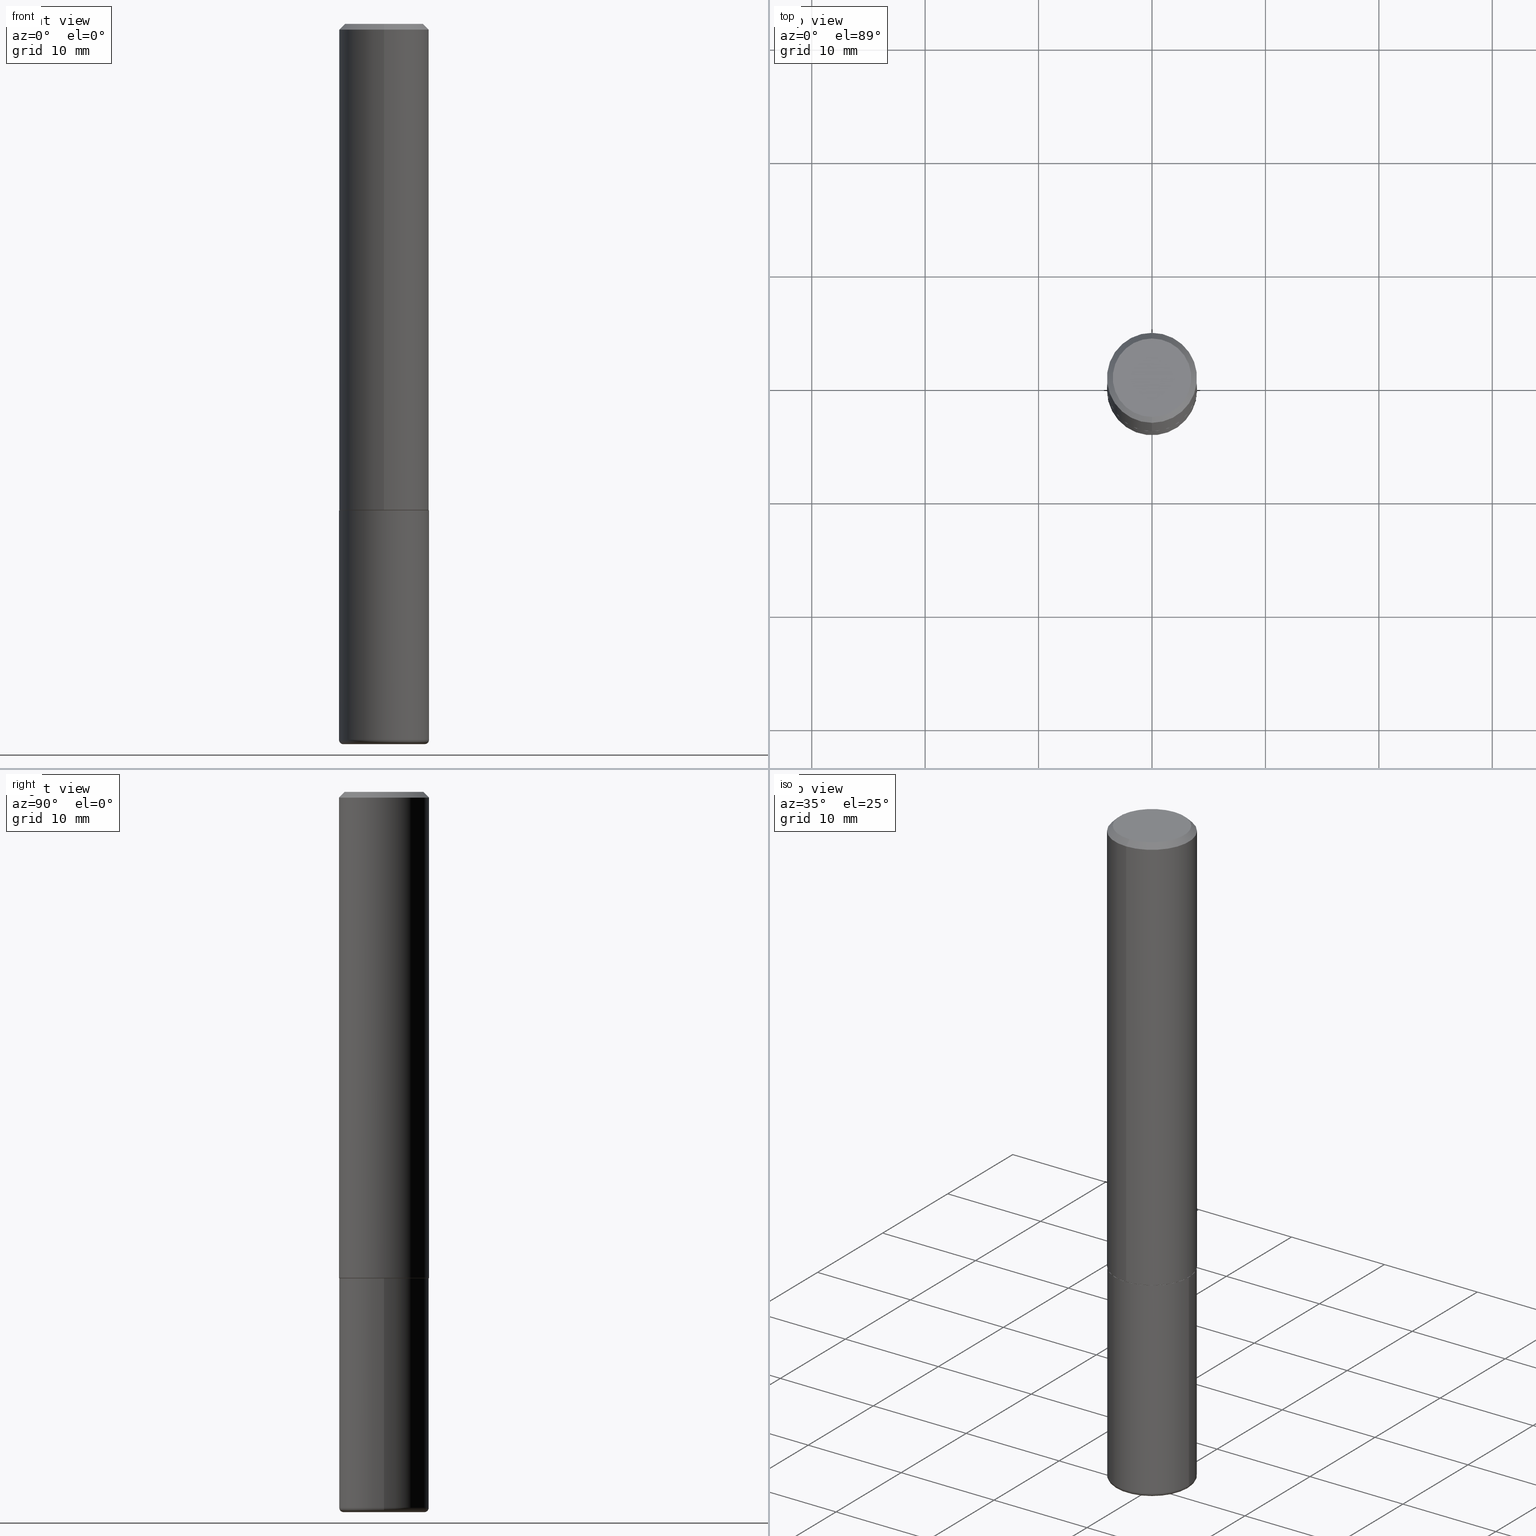
[diagram: canonical four-view strip — front | top / right | iso, engineering-drawing reading convention]
A machine part, canonical four-view strip (front | top / right | iso — engineering-drawing reading convention). The complete STEP part file that produces these views, byte-faithful:
ISO-10303-21;
HEADER;
FILE_DESCRIPTION (( 'STEP AP203' ),
    '1' );
FILE_NAME ('38232.STEP',
    '2024-03-02T19:02:57',
    ( '' ),
    ( '' ),
    'SwSTEP 2.0',
    'SolidWorks 2023',
    '' );
FILE_SCHEMA (( 'CONFIG_CONTROL_DESIGN' ));
ENDSEC;

DATA;
#1 = CARTESIAN_POINT ( 'NONE',  ( 0.000000000000000000, 0.000000000000000000, 0.000000000000000000 ) ) ;
#2 = CIRCLE ( 'NONE', #336, 0.1362500000000000933 ) ;
#3 = DIRECTION ( 'NONE',  ( -2.445468806185136597E-29, 3.491481338843145583E-15, 1.000000000000000000 ) ) ;
#4 = CYLINDRICAL_SURFACE ( 'NONE', #301, 0.1562500000000001110 ) ;
#5 = ORIENTED_EDGE ( 'NONE', *, *, #289, .T. ) ;
#6 = LINE ( 'NONE', #123, #50 ) ;
#7 = VERTEX_POINT ( 'NONE', #363 ) ;
#8 = CARTESIAN_POINT ( 'NONE',  ( 1.091087918388479568E-15, 0.1562499999999999445, -0.02000000000000057981 ) ) ;
#9 = CARTESIAN_POINT ( 'NONE',  ( 6.076989983370064174E-29, -8.676331127025216680E-15, -2.484999999999999876 ) ) ;
#10 = DIRECTION ( 'NONE',  ( 1.000000000000000000, -6.982962677686266711E-15, 4.876176775795936353E-29 ) ) ;
#11 = ORIENTED_EDGE ( 'NONE', *, *, #200, .T. ) ;
#12 = ADVANCED_FACE ( 'NONE', ( #186 ), #325, .T. ) ;
#13 = AXIS2_PLACEMENT_3D ( 'NONE', #96, #65, #216 ) ;
#14 = LOCAL_TIME ( 14, 2, 57.00000000000000000, #225 ) ;
#15 = EDGE_CURVE ( 'NONE', #256, #304, #79, .T. ) ;
#16 = EDGE_LOOP ( 'NONE', ( #72, #311, #158, #358 ) ) ;
#17 = EDGE_CURVE ( 'NONE', #7, #64, #292, .T. ) ;
#18 = ORIENTED_EDGE ( 'NONE', *, *, #132, .T. ) ;
#19 = CYLINDRICAL_SURFACE ( 'NONE', #317, 0.1562500000000000000 ) ;
#20 = ORIENTED_EDGE ( 'NONE', *, *, #326, .T. ) ;
#21 = APPROVAL ( #390, 'UNSPECIFIED' ) ;
#22 = AXIS2_PLACEMENT_3D ( 'NONE', #51, #150, #10 ) ;
#23 = AXIS2_PLACEMENT_3D ( 'NONE', #129, #264, #194 ) ;
#24 = CARTESIAN_POINT ( 'NONE',  ( 6.076989983370064174E-29, -8.676331127025216680E-15, -2.484999999999999876 ) ) ;
#25 = CARTESIAN_POINT ( 'NONE',  ( 4.890090461699924977E-31, -6.984175845663074797E-17, -0.02000000000000003511 ) ) ;
#26 = VERTEX_POINT ( 'NONE', #241 ) ;
#27 = DESIGN_CONTEXT ( 'detailed design', #401, 'design' ) ;
#28 = ORIENTED_EDGE ( 'NONE', *, *, #44, .T. ) ;
#29 = CARTESIAN_POINT ( 'NONE',  ( 4.890090461699924977E-31, -6.984175845663074797E-17, -0.02000000000000003511 ) ) ;
#30 = ADVANCED_FACE ( 'NONE', ( #339 ), #355, .T. ) ;
#31 = AXIS2_PLACEMENT_3D ( 'NONE', #160, #321, #267 ) ;
#32 = APPROVAL_STATUS ( 'not_yet_approved' ) ;
#33 = APPROVAL_ROLE ( '' ) ;
#34 = DIRECTION ( 'NONE',  ( -2.445468806185136597E-29, 3.491481338843145583E-15, 1.000000000000000000 ) ) ;
#35 = CARTESIAN_POINT ( 'NONE',  ( -1.003347832174086278E-15, -0.1362500000000000933, 4.246574766730091504E-16 ) ) ;
#36 = SHAPE_DEFINITION_REPRESENTATION ( #178, #378 ) ;
#37 = APPROVAL ( #199, 'UNSPECIFIED' ) ;
#38 = VECTOR ( 'NONE', #45, 39.37007874015748143 ) ;
#39 = SECURITY_CLASSIFICATION ( '', '', #173 ) ;
#40 = FACE_OUTER_BOUND ( 'NONE', #334, .T. ) ;
#41 = EDGE_LOOP ( 'NONE', ( #182, #20, #275, #273 ) ) ;
#42 = EDGE_CURVE ( 'NONE', #131, #202, #380, .T. ) ;
#43 = CARTESIAN_POINT ( 'NONE',  ( 1.110223024625178234E-15, 0.1562499999999943101, -1.687000000000000499 ) ) ;
#44 = EDGE_CURVE ( 'NONE', #202, #101, #106, .T. ) ;
#45 = DIRECTION ( 'NONE',  ( -2.445468806185136877E-29, 3.491481338843145188E-15, 1.000000000000000000 ) ) ;
#46 = APPROVAL_ROLE ( '' ) ;
#47 = ORIENTED_EDGE ( 'NONE', *, *, #289, .F. ) ;
#48 = CONICAL_SURFACE ( 'NONE', #126, 0.1562500000000000000, 0.7853981633974468357 ) ;
#49 = DATE_TIME_ROLE ( 'creation_date' ) ;
#50 = VECTOR ( 'NONE', #257, 39.37007874015748143 ) ;
#51 = CARTESIAN_POINT ( 'NONE',  ( 0.000000000000000000, 0.000000000000000000, 0.000000000000000000 ) ) ;
#52 = FACE_OUTER_BOUND ( 'NONE', #80, .T. ) ;
#53 = CARTESIAN_POINT ( 'NONE',  ( 4.127236349674729842E-29, -5.894644413739625756E-15, -1.688000000000000167 ) ) ;
#54 = EDGE_CURVE ( 'NONE', #26, #74, #262, .T. ) ;
#55 = LINE ( 'NONE', #397, #38 ) ;
#56 = CONICAL_SURFACE ( 'NONE', #404, 0.1552499999999999991, 0.7853981633975165577 ) ;
#57 = DIRECTION ( 'NONE',  ( -2.445468806185136597E-29, 3.491481338843145583E-15, 1.000000000000000000 ) ) ;
#58 = EDGE_LOOP ( 'NONE', ( #207, #234 ) ) ;
#59 = DIRECTION ( 'NONE',  ( 1.000000000000000000, -6.982962677686264344E-15, 4.883557194083111780E-29 ) ) ;
#60 = EDGE_CURVE ( 'NONE', #74, #26, #148, .T. ) ;
#61 = AXIS2_PLACEMENT_3D ( 'NONE', #373, #34, #151 ) ;
#62 = LINE ( 'NONE', #119, #370 ) ;
#63 = ADVANCED_FACE ( 'NONE', ( #236 ), #76, .F. ) ;
#64 = VERTEX_POINT ( 'NONE', #174 ) ;
#65 = DIRECTION ( 'NONE',  ( -2.445045230849958565E-29, 3.492087922831531704E-15, 1.000000000000000000 ) ) ;
#66 = CARTESIAN_POINT ( 'NONE',  ( 1.103117597267596553E-15, 0.1552499999999940872, -1.688000000000000611 ) ) ;
#67 = AXIS2_PLACEMENT_3D ( 'NONE', #268, #402, #332 ) ;
#68 = DATE_AND_TIME ( #316, #205 ) ;
#69 = DIRECTION ( 'NONE',  ( 5.024295867788404755E-15, 0.7071067811865981989, 0.7071067811864968355 ) ) ;
#70 = CIRCLE ( 'NONE', #167, 0.01499999999999983985 ) ;
#71 = FACE_OUTER_BOUND ( 'NONE', #303, .T. ) ;
#72 = ORIENTED_EDGE ( 'NONE', *, *, #54, .T. ) ;
#73 = CARTESIAN_POINT ( 'NONE',  ( 1.250383974604437494E-45, -1.785836401521438243E-31, -5.113950281278734949E-17 ) ) ;
#74 = VERTEX_POINT ( 'NONE', #385 ) ;
#75 = AXIS2_PLACEMENT_3D ( 'NONE', #117, #375, #86 ) ;
#76 = PLANE ( 'NONE',  #341 ) ;
#77 = ORIENTED_EDGE ( 'NONE', *, *, #276, .T. ) ;
#78 = DIRECTION ( 'NONE',  ( -2.445468806185136597E-29, 3.491481338843145583E-15, 1.000000000000000000 ) ) ;
#79 = CIRCLE ( 'NONE', #318, 0.1412499999999999867 ) ;
#80 = EDGE_LOOP ( 'NONE', ( #224, #18 ) ) ;
#81 = EDGE_CURVE ( 'NONE', #304, #7, #70, .T. ) ;
#82 = ORIENTED_EDGE ( 'NONE', *, *, #149, .F. ) ;
#83 = LINE ( 'NONE', #338, #211 ) ;
#84 = VERTEX_POINT ( 'NONE', #215 ) ;
#85 = COORDINATED_UNIVERSAL_TIME_OFFSET ( 5, 0, .BEHIND. ) ;
#86 = DIRECTION ( 'NONE',  ( -6.982962677686265922E-15, -1.000000000000000000, 3.492087922831532098E-15 ) ) ;
#87 = EDGE_LOOP ( 'NONE', ( #412, #416, #144, #409 ) ) ;
#88 = CLOSED_SHELL ( 'NONE', ( #253, #138, #170, #283, #350, #252, #63, #240 ) ) ;
#89 = VECTOR ( 'NONE', #112, 39.37007874015748143 ) ;
#90 = PRODUCT_RELATED_PRODUCT_CATEGORY ( 'detail', '', ( #255 ) ) ;
#91 = PERSON_AND_ORGANIZATION ( #110, #143 ) ;
#92 = APPROVAL_ROLE ( '' ) ;
#93 = DIRECTION ( 'NONE',  ( -2.445468806185136597E-29, 3.491481338843145583E-15, 1.000000000000000000 ) ) ;
#94 = AXIS2_PLACEMENT_3D ( 'NONE', #161, #307, #271 ) ;
#95 = COORDINATED_UNIVERSAL_TIME_OFFSET ( 5, 0, .BEHIND. ) ;
#96 = CARTESIAN_POINT ( 'NONE',  ( 4.890090461699924977E-31, -6.984175845663074797E-17, -0.02000000000000003511 ) ) ;
#97 = CARTESIAN_POINT ( 'NONE',  ( 6.113672015462840371E-29, -8.728703347107863365E-15, -2.499999999999999556 ) ) ;
#98 = EDGE_LOOP ( 'NONE', ( #82, #399, #239, #195 ) ) ;
#99 = CARTESIAN_POINT ( 'NONE',  ( 6.076989983370064174E-29, -8.676331127025216680E-15, -2.484999999999999876 ) ) ;
#100 = CARTESIAN_POINT ( 'NONE',  ( 0.000000000000000000, 0.000000000000000000, 0.000000000000000000 ) ) ;
#101 = VERTEX_POINT ( 'NONE', #320 ) ;
#102 = ORIENTED_EDGE ( 'NONE', *, *, #259, .T. ) ;
#103 = DIRECTION ( 'NONE',  ( -2.445045230849958565E-29, 3.492087922831531704E-15, 1.000000000000000000 ) ) ;
#104 = DIRECTION ( 'NONE',  ( -2.445045230849958565E-29, 3.492087922831531704E-15, 1.000000000000000000 ) ) ;
#105 = PRODUCT_DEFINITION ( 'UNKNOWN', '', #406, #27 ) ;
#106 = CIRCLE ( 'NONE', #13, 0.1562500000000000000 ) ;
#107 = FACE_OUTER_BOUND ( 'NONE', #98, .T. ) ;
#108 = CC_DESIGN_APPROVAL ( #37, ( #105 ) ) ;
#109 = DIRECTION ( 'NONE',  ( -2.445045230849958565E-29, 3.492087922831531704E-15, 1.000000000000000000 ) ) ;
#110 = PERSON ( 'UNSPECIFIED', 'UNSPECIFIED', 'UNSPECIFIED', ('UNSPECIFIED'), ('UNSPECIFIED'), ('UNSPECIFIED') ) ;
#111 = CARTESIAN_POINT ( 'NONE',  ( 6.113672015462840371E-29, -8.728703347107863365E-15, -2.499999999999999556 ) ) ;
#112 = DIRECTION ( 'NONE',  ( -2.445468806185136877E-29, 3.491481338843145188E-15, 1.000000000000000000 ) ) ;
#113 = ORIENTED_EDGE ( 'NONE', *, *, #17, .T. ) ;
#114 = AXIS2_PLACEMENT_3D ( 'NONE', #1, #121, #298 ) ;
#115 = DIRECTION ( 'NONE',  ( 1.000000000000000000, -6.982962677686270655E-15, 0.000000000000000000 ) ) ;
#116 = ORIENTED_EDGE ( 'NONE', *, *, #276, .F. ) ;
#117 = CARTESIAN_POINT ( 'NONE',  ( 0.000000000000000000, 0.000000000000000000, 0.000000000000000000 ) ) ;
#118 = ORIENTED_EDGE ( 'NONE', *, *, #206, .F. ) ;
#119 = CARTESIAN_POINT ( 'NONE',  ( -1.091087918388479765E-15, -0.1562500000000001110, 5.456387379424272725E-16 ) ) ;
#120 = AXIS2_PLACEMENT_3D ( 'NONE', #176, #290, #389 ) ;
#121 = DIRECTION ( 'NONE',  ( 0.000000000000000000, 0.000000000000000000, 1.000000000000000000 ) ) ;
#122 = CALENDAR_DATE ( 2024, 2, 3 ) ;
#123 = CARTESIAN_POINT ( 'NONE',  ( -1.084104955710751547E-15, -0.1552500000000059110, -1.687999999999999501 ) ) ;
#124 = EDGE_LOOP ( 'NONE', ( #77, #11 ) ) ;
#125 = DIRECTION ( 'NONE',  ( 1.000000000000000000, -6.982962677686213068E-15, 0.000000000000000000 ) ) ;
#126 = AXIS2_PLACEMENT_3D ( 'NONE', #29, #203, #169 ) ;
#127 = DATE_AND_TIME ( #219, #347 ) ;
#128 = CIRCLE ( 'NONE', #61, 0.1562499999999999722 ) ;
#129 = CARTESIAN_POINT ( 'NONE',  ( 4.127951344840510809E-29, -5.893620499967230340E-15, -1.688000000000000167 ) ) ;
#130 = ORIENTED_EDGE ( 'NONE', *, *, #379, .T. ) ;
#131 = VERTEX_POINT ( 'NONE', #43 ) ;
#132 = EDGE_CURVE ( 'NONE', #391, #374, #2, .T. ) ;
#133 = MANIFOLD_SOLID_BREP ( 'Body-Move/Copy2[2]', #88 ) ;
#134 = ORIENTED_EDGE ( 'NONE', *, *, #417, .F. ) ;
#135 = UNCERTAINTY_MEASURE_WITH_UNIT (LENGTH_MEASURE( 1.000000000000000082E-05 ), #294, 'distance_accuracy_value', 'NONE');
#136 = APPROVAL_PERSON_ORGANIZATION ( #248, #192, #33 ) ;
#137 = CARTESIAN_POINT ( 'NONE',  ( 1.250383974604437494E-45, -1.785836401521438243E-31, -5.113950281278734949E-17 ) ) ;
#138 = ADVANCED_FACE ( 'NONE', ( #293 ), #4, .T. ) ;
#139 = LINE ( 'NONE', #411, #89 ) ;
#140 = ORIENTED_EDGE ( 'NONE', *, *, #189, .F. ) ;
#141 = DIRECTION ( 'NONE',  ( -6.982962677686265922E-15, -1.000000000000000000, 3.496765431890251792E-15 ) ) ;
#142 = DIRECTION ( 'NONE',  ( -6.982962677686265133E-15, -1.000000000000000000, 3.496765431890256920E-15 ) ) ;
#143 = ORGANIZATION ( 'UNSPECIFIED', 'UNSPECIFIED', '' ) ;
#144 = ORIENTED_EDGE ( 'NONE', *, *, #159, .F. ) ;
#145 = CARTESIAN_POINT ( 'NONE',  ( -0.1412499999999999867, -7.645584917623391438E-15, -2.499999999999999556 ) ) ;
#146 = DIRECTION ( 'NONE',  ( 2.445045230849958565E-29, -3.492087922831531704E-15, -1.000000000000000000 ) ) ;
#147 = DIRECTION ( 'NONE',  ( -6.982962677686265922E-15, -1.000000000000000000, 3.492087922831532098E-15 ) ) ;
#148 = CIRCLE ( 'NONE', #364, 0.1552499999999999991 ) ;
#149 = EDGE_CURVE ( 'NONE', #74, #131, #354, .T. ) ;
#150 = DIRECTION ( 'NONE',  ( -2.445468806185136597E-29, 3.491481338843145583E-15, 1.000000000000000000 ) ) ;
#151 = DIRECTION ( 'NONE',  ( 1.000000000000000000, -6.982962677686270655E-15, 0.000000000000000000 ) ) ;
#152 = VECTOR ( 'NONE', #69, 39.37007874015748143 ) ;
#153 = AXIS2_PLACEMENT_3D ( 'NONE', #286, #104, #141 ) ;
#154 = FACE_OUTER_BOUND ( 'NONE', #124, .T. ) ;
#155 = DIRECTION ( 'NONE',  ( -2.445045230849958565E-29, 3.492087922831531704E-15, 1.000000000000000000 ) ) ;
#156 = CARTESIAN_POINT ( 'NONE',  ( -1.091087918388439336E-15, -0.1562500000000061062, -1.686999999999999611 ) ) ;
#157 = CIRCLE ( 'NONE', #210, 0.1562500000000000000 ) ;
#158 = ORIENTED_EDGE ( 'NONE', *, *, #407, .F. ) ;
#159 = EDGE_CURVE ( 'NONE', #101, #202, #193, .T. ) ;
#160 = CARTESIAN_POINT ( 'NONE',  ( 9.514286648347543521E-16, 0.1362500000000000933, -5.013667308921901438E-16 ) ) ;
#161 = CARTESIAN_POINT ( 'NONE',  ( 4.127236349674729842E-29, -5.894644413739625756E-15, -1.688000000000000167 ) ) ;
#162 = AXIS2_PLACEMENT_3D ( 'NONE', #24, #57, #115 ) ;
#163 = DIRECTION ( 'NONE',  ( -2.445045230849957724E-29, 3.492087922831532098E-15, 1.000000000000000000 ) ) ;
#164 = CARTESIAN_POINT ( 'NONE',  ( -0.1412499999999999867, -7.672689512764074473E-15, -2.484999999999999876 ) ) ;
#165 = PERSON_AND_ORGANIZATION_ROLE ( 'design_owner' ) ;
#166 = DATE_AND_TIME ( #254, #14 ) ;
#167 = AXIS2_PLACEMENT_3D ( 'NONE', #164, #197, #279 ) ;
#168 = AXIS2_PLACEMENT_3D ( 'NONE', #9, #3, #183 ) ;
#169 = DIRECTION ( 'NONE',  ( 6.982962677686265133E-15, 1.000000000000000000, -3.496765431890256920E-15 ) ) ;
#170 = ADVANCED_FACE ( 'NONE', ( #287 ), #48, .T. ) ;
#171 = CIRCLE ( 'NONE', #346, 0.1412499999999999867 ) ;
#172 = TOROIDAL_SURFACE ( 'NONE', #168, 0.1412499999999999867, 0.01499999999999983985 ) ;
#173 = SECURITY_CLASSIFICATION_LEVEL ( 'unclassified' ) ;
#174 = CARTESIAN_POINT ( 'NONE',  ( 0.1562499999999999167, -9.767419045413696643E-15, -2.484999999999999876 ) ) ;
#175 = COORDINATED_UNIVERSAL_TIME_OFFSET ( 5, 0, .BEHIND. ) ;
#176 = CARTESIAN_POINT ( 'NONE',  ( 4.127951344840510809E-29, -5.893620499967230340E-15, -1.688000000000000167 ) ) ;
#177 = DATE_AND_TIME ( #208, #270 ) ;
#178 = PRODUCT_DEFINITION_SHAPE ( 'NONE', 'NONE',  #105 ) ;
#179 = AXIS2_PLACEMENT_3D ( 'NONE', #393, #191, #142 ) ;
#180 = CC_DESIGN_APPROVAL ( #192, ( #39 ) ) ;
#181 = CARTESIAN_POINT ( 'NONE',  ( 1.286637735382378644E-28, 9.415550375444000163E-16, -2.500000000000000000 ) ) ;
#182 = ORIENTED_EDGE ( 'NONE', *, *, #132, .F. ) ;
#183 = DIRECTION ( 'NONE',  ( 1.000000000000000000, -6.982962677686264344E-15, 4.883557194083111780E-29 ) ) ;
#184 = DIRECTION ( 'NONE',  ( -6.982962677686265922E-15, -1.000000000000000000, 3.492087922831531704E-15 ) ) ;
#185 = CC_DESIGN_APPROVAL ( #21, ( #406 ) ) ;
#186 = FACE_OUTER_BOUND ( 'NONE', #395, .T. ) ;
#187 = CC_DESIGN_DATE_AND_TIME_ASSIGNMENT ( #177, #288, ( #39 ) ) ;
#188 = EDGE_LOOP ( 'NONE', ( #403, #140 ) ) ;
#189 = EDGE_CURVE ( 'NONE', #304, #256, #171, .T. ) ;
#190 = CARTESIAN_POINT ( 'NONE',  ( 0.1562500000000000000, -6.984708418355709513E-15, -1.688000000000000167 ) ) ;
#191 = DIRECTION ( 'NONE',  ( -2.445045230849958565E-29, 3.492087922831531704E-15, 1.000000000000000000 ) ) ;
#192 = APPROVAL ( #32, 'UNSPECIFIED' ) ;
#193 = CIRCLE ( 'NONE', #179, 0.1562500000000000000 ) ;
#194 = DIRECTION ( 'NONE',  ( 1.000000000000000000, -6.982962677686269077E-15, 0.000000000000000000 ) ) ;
#195 = ORIENTED_EDGE ( 'NONE', *, *, #379, .F. ) ;
#196 = AXIS2_PLACEMENT_3D ( 'NONE', #99, #221, #59 ) ;
#197 = DIRECTION ( 'NONE',  ( 7.105427357601001859E-15, 1.000000000000000000, -3.491481338843145583E-15 ) ) ;
#198 = DIRECTION ( 'NONE',  ( -2.445468806185136597E-29, 3.491481338843145583E-15, 1.000000000000000000 ) ) ;
#199 = APPROVAL_STATUS ( 'not_yet_approved' ) ;
#200 = EDGE_CURVE ( 'NONE', #84, #258, #157, .T. ) ;
#201 = CC_DESIGN_PERSON_AND_ORGANIZATION_ASSIGNMENT ( #362, #322, ( #105 ) ) ;
#202 = VERTEX_POINT ( 'NONE', #8 ) ;
#203 = DIRECTION ( 'NONE',  ( 2.445045230849958565E-29, -3.492087922831531704E-15, -1.000000000000000000 ) ) ;
#204 = MECHANICAL_CONTEXT ( 'NONE', #281, 'mechanical' ) ;
#205 = LOCAL_TIME ( 14, 2, 57.00000000000000000, #85 ) ;
#207 = ORIENTED_EDGE ( 'NONE', *, *, #54, .F. ) ;
#206 = EDGE_CURVE ( 'NONE', #256, #64, #335, .T. ) ;
#208 = CALENDAR_DATE ( 2024, 2, 3 ) ;
#209 = PLANE ( 'NONE',  #120 ) ;
#210 = AXIS2_PLACEMENT_3D ( 'NONE', #327, #78, #331 ) ;
#211 = VECTOR ( 'NONE', #226, 39.37007874015748143 ) ;
#212 = LENGTH_MEASURE_WITH_UNIT ( LENGTH_MEASURE( 0.02539999999999999897 ), #400 );
#213 = CARTESIAN_POINT ( 'NONE',  ( 1.110223024625157132E-15, 0.1562500000000001110, -5.456387379424272725E-16 ) ) ;
#214 = PERSON_AND_ORGANIZATION_ROLE ( 'design_supplier' ) ;
#215 = CARTESIAN_POINT ( 'NONE',  ( -0.1562500000000000000, -6.174752788871067364E-15, -1.688000000000000167 ) ) ;
#216 = DIRECTION ( 'NONE',  ( -6.982962677686265133E-15, -1.000000000000000000, 3.496765431890256920E-15 ) ) ;
#217 = CARTESIAN_POINT ( 'NONE',  ( -1.071952812151801215E-15, -0.1562500000000000833, -0.01999999999999948694 ) ) ;
#218 = CIRCLE ( 'NONE', #23, 0.1562500000000000000 ) ;
#219 = CALENDAR_DATE ( 2024, 2, 3 ) ;
#220 = EDGE_LOOP ( 'NONE', ( #229, #243, #242, #118 ) ) ;
#221 = DIRECTION ( 'NONE',  ( -2.445468806185136597E-29, 3.491481338843145583E-15, 1.000000000000000000 ) ) ;
#222 = ORIENTED_EDGE ( 'NONE', *, *, #200, .F. ) ;
#223 = CC_DESIGN_PERSON_AND_ORGANIZATION_ASSIGNMENT ( #315, #214, ( #406 ) ) ;
#224 = ORIENTED_EDGE ( 'NONE', *, *, #417, .T. ) ;
#225 = COORDINATED_UNIVERSAL_TIME_OFFSET ( 5, 0, .BEHIND. ) ;
#226 = DIRECTION ( 'NONE',  ( 4.937700262164540154E-15, 0.7071067811865440200, -0.7071067811865510144 ) ) ;
#227 = CLOSED_SHELL ( 'NONE', ( #414, #343, #345, #12, #328, #30 ) ) ;
#228 = CONICAL_SURFACE ( 'NONE', #342, 0.1562500000000000000, 0.7853981633974468357 ) ;
#229 = ORIENTED_EDGE ( 'NONE', *, *, #15, .T. ) ;
#230 = DIRECTION ( 'NONE',  ( -2.445045230849958565E-29, 3.492087922831531704E-15, 1.000000000000000000 ) ) ;
#231 = PLANE ( 'NONE',  #31 ) ;
#232 = ORIENTED_EDGE ( 'NONE', *, *, #189, .T. ) ;
#233 = CARTESIAN_POINT ( 'NONE',  ( 0.1412499999999999867, -9.662674605248401695E-15, -2.484999999999999876 ) ) ;
#234 = ORIENTED_EDGE ( 'NONE', *, *, #60, .F. ) ;
#235 = PERSON_AND_ORGANIZATION ( #110, #143 ) ;
#236 = FACE_OUTER_BOUND ( 'NONE', #58, .T. ) ;
#237 = CIRCLE ( 'NONE', #413, 0.1562500000000002220 ) ;
#238 = DIRECTION ( 'NONE',  ( -2.445045230849958565E-29, 3.492087922831532098E-15, 1.000000000000000000 ) ) ;
#239 = ORIENTED_EDGE ( 'NONE', *, *, #308, .T. ) ;
#240 = ADVANCED_FACE ( 'NONE', ( #52 ), #231, .F. ) ;
#241 = CARTESIAN_POINT ( 'NONE',  ( -1.084104955710751547E-15, -0.1552500000000059110, -1.687999999999999501 ) ) ;
#242 = ORIENTED_EDGE ( 'NONE', *, *, #300, .F. ) ;
#243 = ORIENTED_EDGE ( 'NONE', *, *, #81, .T. ) ;
#244 = PERSON_AND_ORGANIZATION_ROLE ( 'classification_officer' ) ;
#245 = VECTOR ( 'NONE', #388, 39.37007874015748143 ) ;
#246 = CC_DESIGN_SECURITY_CLASSIFICATION ( #39, ( #406 ) ) ;
#247 = DIRECTION ( 'NONE',  ( 1.000000000000000000, -6.982962677686270655E-15, 0.000000000000000000 ) ) ;
#248 = PERSON_AND_ORGANIZATION ( #110, #143 ) ;
#249 = TOROIDAL_SURFACE ( 'NONE', #196, 0.1412499999999999867, 0.01499999999999983985 ) ;
#250 = DIRECTION ( 'NONE',  ( -6.982962677686265922E-15, -1.000000000000000000, 3.492087922831531704E-15 ) ) ;
#251 = DIRECTION ( 'NONE',  ( -6.982962677686265922E-15, -1.000000000000000000, 3.496765431890251792E-15 ) ) ;
#252 = ADVANCED_FACE ( 'NONE', ( #107 ), #277, .T. ) ;
#253 = ADVANCED_FACE ( 'NONE', ( #297 ), #56, .T. ) ;
#254 = CALENDAR_DATE ( 2024, 2, 3 ) ;
#255 = PRODUCT ( '38232', '38232', '', ( #204 ) ) ;
#256 = VERTEX_POINT ( 'NONE', #366 ) ;
#257 = DIRECTION ( 'NONE',  ( -4.937700262164884886E-15, -0.7071067811865933139, 0.7071067811865017205 ) ) ;
#258 = VERTEX_POINT ( 'NONE', #190 ) ;
#259 = EDGE_CURVE ( 'NONE', #7, #84, #55, .T. ) ;
#260 = DIRECTION ( 'NONE',  ( -6.982962677686265922E-15, -1.000000000000000000, 3.519288880726909138E-15 ) ) ;
#261 = FACE_OUTER_BOUND ( 'NONE', #368, .T. ) ;
#262 = CIRCLE ( 'NONE', #67, 0.1552499999999999991 ) ;
#263 = VERTEX_POINT ( 'NONE', #156 ) ;
#264 = DIRECTION ( 'NONE',  ( -2.445468806185136597E-29, 3.491481338843145583E-15, 1.000000000000000000 ) ) ;
#265 = CC_DESIGN_PERSON_AND_ORGANIZATION_ASSIGNMENT ( #91, #244, ( #39 ) ) ;
#266 = DIRECTION ( 'NONE',  ( -2.445045230849958565E-29, 3.492087922831531704E-15, 1.000000000000000000 ) ) ;
#267 = DIRECTION ( 'NONE',  ( 6.982962677686265922E-15, 1.000000000000000000, -3.492087922831532098E-15 ) ) ;
#268 = CARTESIAN_POINT ( 'NONE',  ( 4.127236349674729842E-29, -5.894644413739625756E-15, -1.688000000000000167 ) ) ;
#269 = CARTESIAN_POINT ( 'NONE',  ( 4.124791304443880664E-29, -5.891152325816794336E-15, -1.687000000000000055 ) ) ;
#270 = LOCAL_TIME ( 14, 2, 57.00000000000000000, #382 ) ;
#271 = DIRECTION ( 'NONE',  ( -6.982962677686265922E-15, -1.000000000000000000, 3.519288880726909138E-15 ) ) ;
#272 = DIRECTION ( 'NONE',  ( -6.982962677686265922E-15, -1.000000000000000000, 3.519288880726909138E-15 ) ) ;
#273 = ORIENTED_EDGE ( 'NONE', *, *, #381, .F. ) ;
#274 = APPLICATION_PROTOCOL_DEFINITION ( 'international standard', 'config_control_design', 1994, #401 ) ;
#275 = ORIENTED_EDGE ( 'NONE', *, *, #159, .T. ) ;
#276 = EDGE_CURVE ( 'NONE', #258, #84, #218, .T. ) ;
#277 = CONICAL_SURFACE ( 'NONE', #94, 0.1552499999999999991, 0.7853981633975165577 ) ;
#278 = AXIS2_PLACEMENT_3D ( 'NONE', #137, #360, #184 ) ;
#279 = DIRECTION ( 'NONE',  ( -1.000000000000000000, 7.105427357601001859E-15, 0.000000000000000000 ) ) ;
#280 = MANIFOLD_SOLID_BREP ( 'Body-Move/Copy2[1]', #227 ) ;
#281 = APPLICATION_CONTEXT ( 'configuration controlled 3d designs of mechanical parts and assemblies' ) ;
#282 = ORIENTED_EDGE ( 'NONE', *, *, #42, .F. ) ;
#283 = ADVANCED_FACE ( 'NONE', ( #310 ), #228, .T. ) ;
#284 = DIRECTION ( 'NONE',  ( 6.982962677686265133E-15, 1.000000000000000000, -3.496765431890256920E-15 ) ) ;
#285 = ORIENTED_EDGE ( 'NONE', *, *, #81, .F. ) ;
#286 = CARTESIAN_POINT ( 'NONE',  ( 4.124791304443880664E-29, -5.891152325816794336E-15, -1.687000000000000055 ) ) ;
#287 = FACE_OUTER_BOUND ( 'NONE', #41, .T. ) ;
#288 = DATE_TIME_ROLE ( 'classification_date' ) ;
#289 = EDGE_CURVE ( 'NONE', #64, #258, #139, .T. ) ;
#290 = DIRECTION ( 'NONE',  ( 2.438088387897960049E-29, -3.491481338843145188E-15, -1.000000000000000000 ) ) ;
#291 = CC_DESIGN_PERSON_AND_ORGANIZATION_ASSIGNMENT ( #235, #352, ( #406 ) ) ;
#292 = CIRCLE ( 'NONE', #162, 0.1562499999999999722 ) ;
#293 = FACE_OUTER_BOUND ( 'NONE', #87, .T. ) ;
#294 =( CONVERSION_BASED_UNIT ( 'INCH', #212 ) LENGTH_UNIT ( ) NAMED_UNIT ( #348 ) );
#295 = DIRECTION ( 'NONE',  ( -6.982962677686265922E-15, -1.000000000000000000, 3.492087922831532098E-15 ) ) ;
#296 = EDGE_CURVE ( 'NONE', #263, #101, #62, .T. ) ;
#297 = FACE_OUTER_BOUND ( 'NONE', #16, .T. ) ;
#298 = DIRECTION ( 'NONE',  ( 1.000000000000000000, 0.000000000000000000, 0.000000000000000000 ) ) ;
#299 = ORIENTED_EDGE ( 'NONE', *, *, #381, .T. ) ;
#300 = EDGE_CURVE ( 'NONE', #64, #7, #128, .T. ) ;
#301 = AXIS2_PLACEMENT_3D ( 'NONE', #100, #155, #295 ) ;
#302 = CIRCLE ( 'NONE', #278, 0.1362500000000000933 ) ;
#303 = EDGE_LOOP ( 'NONE', ( #285, #232, #376, #418 ) ) ;
#304 = VERTEX_POINT ( 'NONE', #145 ) ;
#305 = DIRECTION ( 'NONE',  ( -2.445468806185136597E-29, 3.491481338843145583E-15, 1.000000000000000000 ) ) ;
#306 = ORIENTED_EDGE ( 'NONE', *, *, #326, .F. ) ;
#307 = DIRECTION ( 'NONE',  ( -2.445045230849958565E-29, 3.492087922831531704E-15, 1.000000000000000000 ) ) ;
#308 = EDGE_CURVE ( 'NONE', #26, #263, #6, .T. ) ;
#309 = APPROVAL_DATE_TIME ( #68, #21 ) ;
#310 = FACE_OUTER_BOUND ( 'NONE', #344, .T. ) ;
#311 = ORIENTED_EDGE ( 'NONE', *, *, #149, .T. ) ;
#312 = AXIS2_PLACEMENT_3D ( 'NONE', #181, #410, #340 ) ;
#313 = DIRECTION ( 'NONE',  ( 1.000000000000000000, -6.982962677686270655E-15, 0.000000000000000000 ) ) ;
#314 = CC_DESIGN_PERSON_AND_ORGANIZATION_ASSIGNMENT ( #367, #165, ( #255 ) ) ;
#315 = PERSON_AND_ORGANIZATION ( #110, #143 ) ;
#316 = CALENDAR_DATE ( 2024, 2, 3 ) ;
#317 = AXIS2_PLACEMENT_3D ( 'NONE', #329, #305, #398 ) ;
#318 = AXIS2_PLACEMENT_3D ( 'NONE', #97, #93, #247 ) ;
#319 =( GEOMETRIC_REPRESENTATION_CONTEXT ( 3 ) GLOBAL_UNCERTAINTY_ASSIGNED_CONTEXT ( ( #135 ) ) GLOBAL_UNIT_ASSIGNED_CONTEXT ( ( #294, #351, #324 ) ) REPRESENTATION_CONTEXT ( 'NONE', 'WORKASPACE' ) );
#320 = CARTESIAN_POINT ( 'NONE',  ( -1.071952812151801215E-15, -0.1562500000000000833, -0.01999999999999948694 ) ) ;
#321 = DIRECTION ( 'NONE',  ( 2.445045230849957724E-29, -3.492087922831532098E-15, -1.000000000000000000 ) ) ;
#322 = PERSON_AND_ORGANIZATION_ROLE ( 'creator' ) ;
#323 = VECTOR ( 'NONE', #357, 39.37007874015748143 ) ;
#324 =( NAMED_UNIT ( * ) SI_UNIT ( $, .STERADIAN. ) SOLID_ANGLE_UNIT ( ) );
#325 = CYLINDRICAL_SURFACE ( 'NONE', #22, 0.1562500000000000000 ) ;
#326 = EDGE_CURVE ( 'NONE', #391, #101, #394, .T. ) ;
#327 = CARTESIAN_POINT ( 'NONE',  ( 4.127951344840510809E-29, -5.893620499967230340E-15, -1.688000000000000167 ) ) ;
#328 = ADVANCED_FACE ( 'NONE', ( #71 ), #172, .T. ) ;
#329 = CARTESIAN_POINT ( 'NONE',  ( 0.000000000000000000, 0.000000000000000000, 0.000000000000000000 ) ) ;
#330 = APPLICATION_PROTOCOL_DEFINITION ( 'international standard', 'config_control_design', 1994, #281 ) ;
#331 = DIRECTION ( 'NONE',  ( 1.000000000000000000, -6.982962677686269077E-15, 0.000000000000000000 ) ) ;
#332 = DIRECTION ( 'NONE',  ( -6.982962677686265922E-15, -1.000000000000000000, 3.519288880726909138E-15 ) ) ;
#333 = CARTESIAN_POINT ( 'NONE',  ( 1.021258291611616861E-15, 0.1362500000000000933, -5.269364822985837754E-16 ) ) ;
#334 = EDGE_LOOP ( 'NONE', ( #383, #102, #116, #47 ) ) ;
#335 = CIRCLE ( 'NONE', #396, 0.01499999999999983985 ) ;
#336 = AXIS2_PLACEMENT_3D ( 'NONE', #73, #266, #250 ) ;
#337 = APPROVAL_PERSON_ORGANIZATION ( #353, #21, #92 ) ;
#338 = CARTESIAN_POINT ( 'NONE',  ( 1.091087918388479568E-15, 0.1562499999999999445, -0.02000000000000057981 ) ) ;
#339 = FACE_OUTER_BOUND ( 'NONE', #188, .T. ) ;
#340 = DIRECTION ( 'NONE',  ( -1.000000000000000000, 6.982962677686265922E-15, -4.876176775795935793E-29 ) ) ;
#341 = AXIS2_PLACEMENT_3D ( 'NONE', #53, #163, #147 ) ;
#342 = AXIS2_PLACEMENT_3D ( 'NONE', #25, #146, #284 ) ;
#343 = ADVANCED_FACE ( 'NONE', ( #387 ), #249, .T. ) ;
#344 = EDGE_LOOP ( 'NONE', ( #306, #134, #299, #28 ) ) ;
#345 = ADVANCED_FACE ( 'NONE', ( #154 ), #209, .F. ) ;
#346 = AXIS2_PLACEMENT_3D ( 'NONE', #111, #198, #313 ) ;
#347 = LOCAL_TIME ( 14, 2, 57.00000000000000000, #175 ) ;
#348 = DIMENSIONAL_EXPONENTS ( 1.000000000000000000, 0.000000000000000000, 0.000000000000000000, 0.000000000000000000, 0.000000000000000000, 0.000000000000000000, 0.000000000000000000 ) ;
#349 = APPROVAL_DATE_TIME ( #386, #192 ) ;
#350 = ADVANCED_FACE ( 'NONE', ( #261 ), #371, .T. ) ;
#351 =( NAMED_UNIT ( * ) PLANE_ANGLE_UNIT ( ) SI_UNIT ( $, .RADIAN. ) );
#352 = PERSON_AND_ORGANIZATION_ROLE ( 'creator' ) ;
#353 = PERSON_AND_ORGANIZATION ( #110, #143 ) ;
#354 = LINE ( 'NONE', #66, #152 ) ;
#355 = PLANE ( 'NONE',  #312 ) ;
#356 = CC_DESIGN_DATE_AND_TIME_ASSIGNMENT ( #127, #49, ( #105 ) ) ;
#357 = DIRECTION ( 'NONE',  ( -4.851104656540956386E-15, -0.7071067811865489050, -0.7071067811865461294 ) ) ;
#358 = ORIENTED_EDGE ( 'NONE', *, *, #308, .F. ) ;
#359 = DIRECTION ( 'NONE',  ( -6.982962677686266711E-15, -1.000000000000000000, 3.491481338843145583E-15 ) ) ;
#360 = DIRECTION ( 'NONE',  ( -2.445045230849958565E-29, 3.492087922831531704E-15, 1.000000000000000000 ) ) ;
#361 = ORIENTED_EDGE ( 'NONE', *, *, #296, .T. ) ;
#362 = PERSON_AND_ORGANIZATION ( #110, #143 ) ;
#363 = CARTESIAN_POINT ( 'NONE',  ( -0.1562499999999999167, -7.566108102400061717E-15, -2.484999999999999876 ) ) ;
#364 = AXIS2_PLACEMENT_3D ( 'NONE', #405, #103, #272 ) ;
#365 = CIRCLE ( 'NONE', #153, 0.1562500000000002220 ) ;
#366 = CARTESIAN_POINT ( 'NONE',  ( 0.1412499999999999867, -9.715046825331048380E-15, -2.499999999999999556 ) ) ;
#367 = PERSON_AND_ORGANIZATION ( #110, #143 ) ;
#368 = EDGE_LOOP ( 'NONE', ( #282, #130, #361, #415 ) ) ;
#369 = APPROVAL_DATE_TIME ( #166, #37 ) ;
#370 = VECTOR ( 'NONE', #238, 39.37007874015748143 ) ;
#371 = CYLINDRICAL_SURFACE ( 'NONE', #75, 0.1562500000000001110 ) ;
#372 = PERSON_AND_ORGANIZATION ( #110, #143 ) ;
#373 = CARTESIAN_POINT ( 'NONE',  ( 6.076989983370064174E-29, -8.676331127025216680E-15, -2.484999999999999876 ) ) ;
#374 = VERTEX_POINT ( 'NONE', #333 ) ;
#375 = DIRECTION ( 'NONE',  ( -2.445045230849958565E-29, 3.492087922831531704E-15, 1.000000000000000000 ) ) ;
#376 = ORIENTED_EDGE ( 'NONE', *, *, #206, .T. ) ;
#377 = LOCAL_TIME ( 14, 2, 57.00000000000000000, #95 ) ;
#378 = ADVANCED_BREP_SHAPE_REPRESENTATION ( '38232', ( #280, #133, #114 ), #319 ) ;
#379 = EDGE_CURVE ( 'NONE', #131, #263, #365, .T. ) ;
#380 = LINE ( 'NONE', #213, #245 ) ;
#381 = EDGE_CURVE ( 'NONE', #374, #202, #83, .T. ) ;
#382 = COORDINATED_UNIVERSAL_TIME_OFFSET ( 5, 0, .BEHIND. ) ;
#383 = ORIENTED_EDGE ( 'NONE', *, *, #300, .T. ) ;
#384 = APPROVAL_PERSON_ORGANIZATION ( #372, #37, #46 ) ;
#385 = CARTESIAN_POINT ( 'NONE',  ( 1.106670310946397846E-15, 0.1552499999999940872, -1.688000000000000611 ) ) ;
#386 = DATE_AND_TIME ( #122, #377 ) ;
#387 = FACE_OUTER_BOUND ( 'NONE', #220, .T. ) ;
#388 = DIRECTION ( 'NONE',  ( -2.445045230849958565E-29, 3.492087922831532098E-15, 1.000000000000000000 ) ) ;
#389 = DIRECTION ( 'NONE',  ( -1.000000000000000000, 6.982962677686265922E-15, -4.876176775795935793E-29 ) ) ;
#390 = APPROVAL_STATUS ( 'not_yet_approved' ) ;
#391 = VERTEX_POINT ( 'NONE', #35 ) ;
#392 = ORIENTED_EDGE ( 'NONE', *, *, #259, .F. ) ;
#393 = CARTESIAN_POINT ( 'NONE',  ( 4.890090461699924977E-31, -6.984175845663074797E-17, -0.02000000000000003511 ) ) ;
#394 = LINE ( 'NONE', #217, #323 ) ;
#395 = EDGE_LOOP ( 'NONE', ( #392, #113, #5, #222 ) ) ;
#396 = AXIS2_PLACEMENT_3D ( 'NONE', #233, #359, #125 ) ;
#397 = CARTESIAN_POINT ( 'NONE',  ( -0.1562500000000000000, 1.110223024625156540E-15, -7.685836078523291160E-30 ) ) ;
#398 = DIRECTION ( 'NONE',  ( 1.000000000000000000, -6.982962677686266711E-15, 4.876176775795936353E-29 ) ) ;
#399 = ORIENTED_EDGE ( 'NONE', *, *, #60, .T. ) ;
#400 =( LENGTH_UNIT ( ) NAMED_UNIT ( * ) SI_UNIT ( $, .METRE. ) );
#401 = APPLICATION_CONTEXT ( 'configuration controlled 3d designs of mechanical parts and assemblies' ) ;
#402 = DIRECTION ( 'NONE',  ( -2.445045230849958565E-29, 3.492087922831531704E-15, 1.000000000000000000 ) ) ;
#403 = ORIENTED_EDGE ( 'NONE', *, *, #15, .F. ) ;
#404 = AXIS2_PLACEMENT_3D ( 'NONE', #408, #109, #260 ) ;
#405 = CARTESIAN_POINT ( 'NONE',  ( 4.127236349674729842E-29, -5.894644413739625756E-15, -1.688000000000000167 ) ) ;
#406 = PRODUCT_DEFINITION_FORMATION_WITH_SPECIFIED_SOURCE ( 'ANY', '', #255, .NOT_KNOWN. ) ;
#407 = EDGE_CURVE ( 'NONE', #263, #131, #237, .T. ) ;
#408 = CARTESIAN_POINT ( 'NONE',  ( 4.127236349674729842E-29, -5.894644413739625756E-15, -1.688000000000000167 ) ) ;
#409 = ORIENTED_EDGE ( 'NONE', *, *, #296, .F. ) ;
#410 = DIRECTION ( 'NONE',  ( 2.438088387897960049E-29, -3.491481338843145188E-15, -1.000000000000000000 ) ) ;
#411 = CARTESIAN_POINT ( 'NONE',  ( 0.1562500000000000000, -1.091087918388479174E-15, 7.619026212181150377E-30 ) ) ;
#412 = ORIENTED_EDGE ( 'NONE', *, *, #407, .T. ) ;
#413 = AXIS2_PLACEMENT_3D ( 'NONE', #269, #230, #251 ) ;
#414 = ADVANCED_FACE ( 'NONE', ( #40 ), #19, .T. ) ;
#415 = ORIENTED_EDGE ( 'NONE', *, *, #44, .F. ) ;
#416 = ORIENTED_EDGE ( 'NONE', *, *, #42, .T. ) ;
#417 = EDGE_CURVE ( 'NONE', #374, #391, #302, .T. ) ;
#418 = ORIENTED_EDGE ( 'NONE', *, *, #17, .F. ) ;
ENDSEC;
END-ISO-10303-21;
